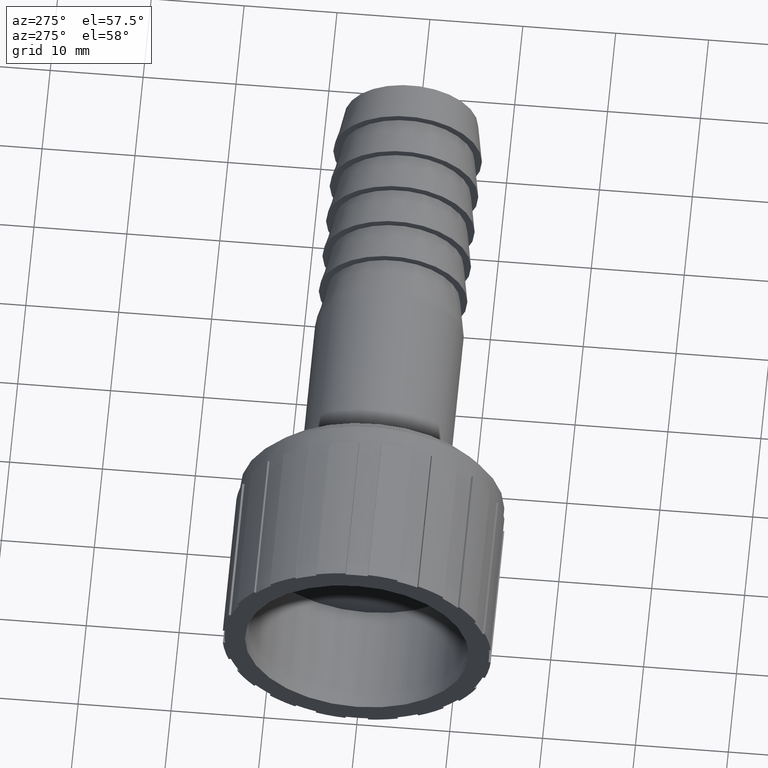
[diagram: clean part render]
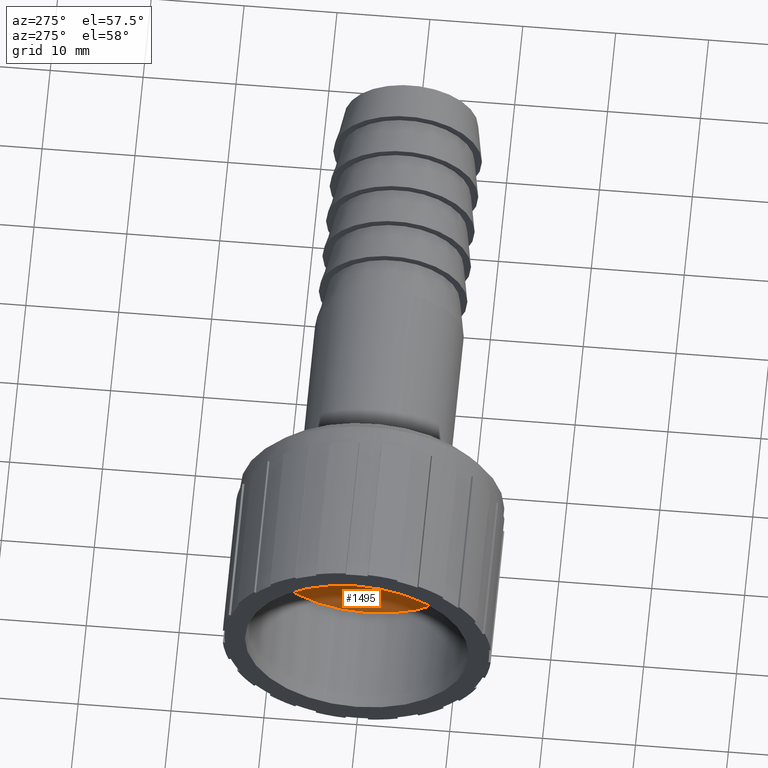
[diagram: same view with one face highlighted and labeled with its STEP entity id]
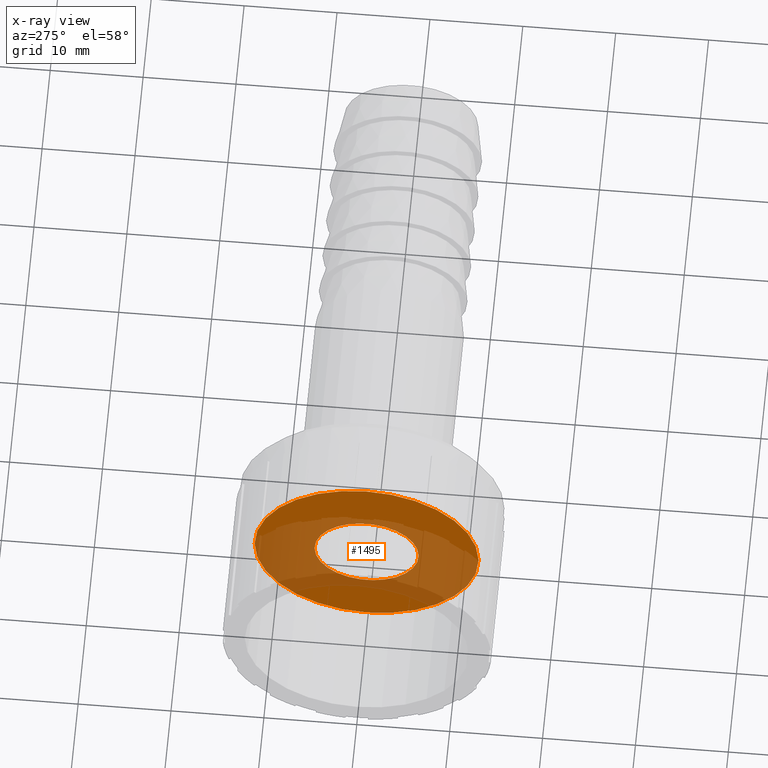
[diagram: x-ray of the same camera — body ghosted, the highlighted face saturated]
A machine part, auxiliary view. The second image highlights one B-rep face of the part: STEP entity #1495.
The next image is the same camera in x-ray: the body ghosted, the highlighted face saturated — about 54% of this face is hidden behind the body in this view.
In plain terms, the highlighted planar face has unit normal (-1, 0, 0).
Its self-contained STEP definition (entity closure, byte-faithful):
#47=FACE_BOUND('',#304,.T.);
#130=CIRCLE('',#1649,12.0585);
#131=CIRCLE('',#1651,5.6);
#214=FACE_OUTER_BOUND('',#303,.T.);
#303=EDGE_LOOP('',(#1339));
#304=EDGE_LOOP('',(#1340));
#721=VERTEX_POINT('',#2541);
#722=VERTEX_POINT('',#2544);
#932=EDGE_CURVE('',#721,#721,#130,.T.);
#933=EDGE_CURVE('',#722,#722,#131,.T.);
#1339=ORIENTED_EDGE('',*,*,#932,.T.);
#1340=ORIENTED_EDGE('',*,*,#933,.F.);
#1419=PLANE('',#1650);
#1495=ADVANCED_FACE('',(#214,#47),#1419,.T.);
#1649=AXIS2_PLACEMENT_3D('',#2542,#2083,#2084);
#1650=AXIS2_PLACEMENT_3D('',#2543,#2085,#2086);
#1651=AXIS2_PLACEMENT_3D('',#2545,#2087,#2088);
#2083=DIRECTION('center_axis',(-1.,0.,0.));
#2084=DIRECTION('ref_axis',(0.,0.,1.));
#2085=DIRECTION('center_axis',(-1.,0.,0.));
#2086=DIRECTION('ref_axis',(0.,0.,1.));
#2087=DIRECTION('center_axis',(-1.,0.,0.));
#2088=DIRECTION('ref_axis',(0.,0.,1.));
#2541=CARTESIAN_POINT('',(12.06,-12.0585,0.));
#2542=CARTESIAN_POINT('Origin',(12.06,0.,0.));
#2543=CARTESIAN_POINT('Origin',(12.06,-5.6,0.));
#2544=CARTESIAN_POINT('',(12.06,-5.6,0.));
#2545=CARTESIAN_POINT('Origin',(12.06,0.,0.));